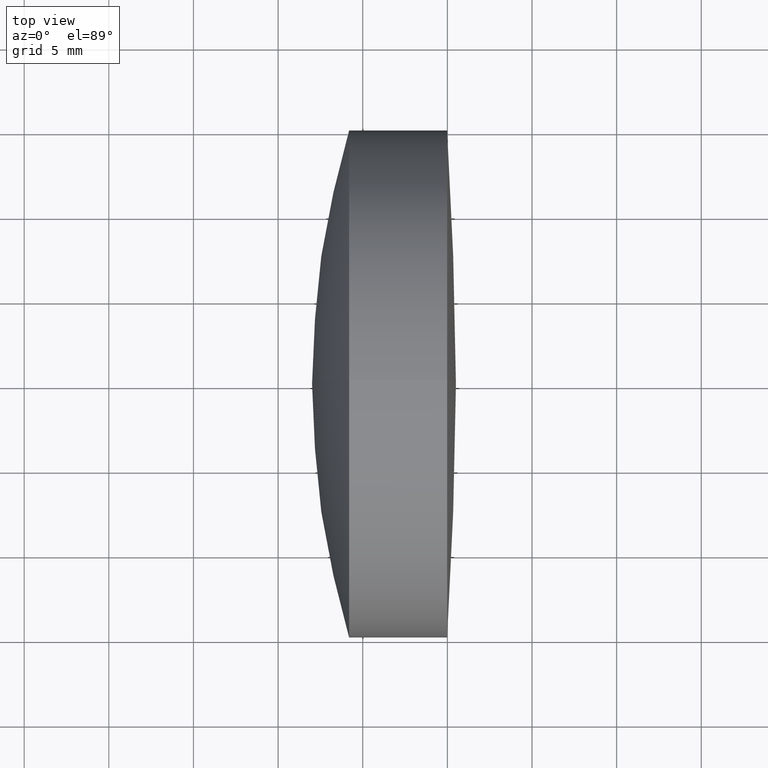
[diagram: clean part render]
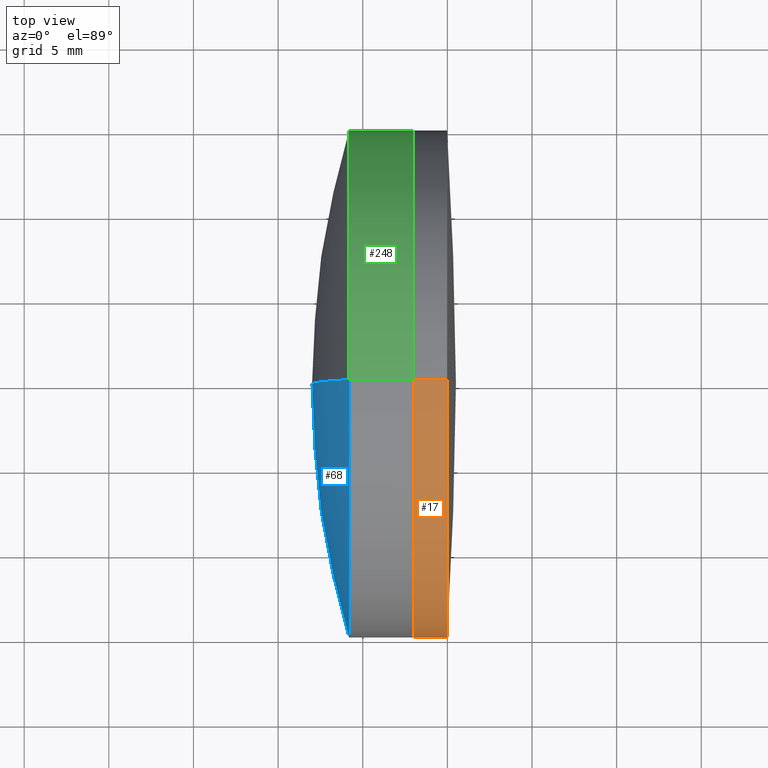
[diagram: same view with three faces highlighted in distinct colors, each labeled with its STEP entity id]
A machine part, top view with three faces highlighted in distinct colors.
Their STEP definitions:

[orange] entity #17 — the highlighted cylindrical surface (partial cylindrical patch) has radius 15 mm, axis along (-1, -0, -0).
#2 = AXIS2_PLACEMENT_3D ( 'NONE', #231, #78, #183 ) ;
#14 = FACE_OUTER_BOUND ( 'NONE', #337, .T. ) ;
#17 = ADVANCED_FACE ( 'NONE', ( #14 ), #297, .T. ) ;
#39 = VERTEX_POINT ( 'NONE', #101 ) ;
#51 = CARTESIAN_POINT ( 'NONE',  ( 534.9862274353326900, 0.0000000000000000000, 14.99999999999961500 ) ) ;
#78 = DIRECTION ( 'NONE',  ( -1.000000000000000000, -0.0000000000000000000, -0.0000000000000000000 ) ) ;
#82 = VERTEX_POINT ( 'NONE', #284 ) ;
#92 = EDGE_CURVE ( 'NONE', #246, #260, #144, .T. ) ;
#95 = ORIENTED_EDGE ( 'NONE', *, *, #252, .F. ) ;
#101 = CARTESIAN_POINT ( 'NONE',  ( 532.9862274353328100, 0.0000000000000000000, 14.99999999999968700 ) ) ;
#111 = DIRECTION ( 'NONE',  ( 0.0000000000000000000, 0.0000000000000000000, 1.000000000000000000 ) ) ;
#112 = EDGE_CURVE ( 'NONE', #82, #39, #334, .T. ) ;
#113 = DIRECTION ( 'NONE',  ( -1.000000000000000000, -0.0000000000000000000, -0.0000000000000000000 ) ) ;
#115 = CARTESIAN_POINT ( 'NONE',  ( -0.5519199926577972300, 0.0000000000000000000, 14.99999999999967700 ) ) ;
#132 = AXIS2_PLACEMENT_3D ( 'NONE', #133, #312, #253 ) ;
#133 = CARTESIAN_POINT ( 'NONE',  ( 534.9862274353326900, 0.0000000000000000000, 0.0000000000000000000 ) ) ;
#144 = CIRCLE ( 'NONE', #132, 14.99999999999961500 ) ;
#152 = AXIS2_PLACEMENT_3D ( 'NONE', #160, #280, #111 ) ;
#160 = CARTESIAN_POINT ( 'NONE',  ( 532.9862274353328100, 0.0000000000000000000, 0.0000000000000000000 ) ) ;
#182 = CARTESIAN_POINT ( 'NONE',  ( -0.5519199926577972300, 1.836970198720990100E-015, -14.99999999999967700 ) ) ;
#183 = DIRECTION ( 'NONE',  ( 0.0000000000000000000, 0.0000000000000000000, 1.000000000000000000 ) ) ;
#186 = VECTOR ( 'NONE', #218, 1000.000000000000000 ) ;
#206 = ORIENTED_EDGE ( 'NONE', *, *, #112, .F. ) ;
#212 = VECTOR ( 'NONE', #113, 1000.000000000000000 ) ;
#218 = DIRECTION ( 'NONE',  ( -1.000000000000000000, -0.0000000000000000000, -0.0000000000000000000 ) ) ;
#231 = CARTESIAN_POINT ( 'NONE',  ( -0.5519199926577972300, 0.0000000000000000000, 0.0000000000000000000 ) ) ;
#246 = VERTEX_POINT ( 'NONE', #336 ) ;
#252 = EDGE_CURVE ( 'NONE', #246, #82, #293, .T. ) ;
#253 = DIRECTION ( 'NONE',  ( 0.0000000000000000000, 0.0000000000000000000, 1.000000000000000000 ) ) ;
#260 = VERTEX_POINT ( 'NONE', #51 ) ;
#270 = ORIENTED_EDGE ( 'NONE', *, *, #92, .T. ) ;
#280 = DIRECTION ( 'NONE',  ( -1.000000000000000000, -0.0000000000000000000, -0.0000000000000000000 ) ) ;
#284 = CARTESIAN_POINT ( 'NONE',  ( 532.9862274353328100, 1.836970198720991700E-015, -14.99999999999968700 ) ) ;
#292 = EDGE_CURVE ( 'NONE', #260, #39, #340, .T. ) ;
#293 = LINE ( 'NONE', #182, #212 ) ;
#297 = CYLINDRICAL_SURFACE ( 'NONE', #2, 14.99999999999967700 ) ;
#312 = DIRECTION ( 'NONE',  ( -1.000000000000000000, -0.0000000000000000000, -0.0000000000000000000 ) ) ;
#334 = CIRCLE ( 'NONE', #152, 14.99999999999973900 ) ;
#336 = CARTESIAN_POINT ( 'NONE',  ( 534.9862274353326900, 1.836970198720986600E-015, -14.99999999999961500 ) ) ;
#337 = EDGE_LOOP ( 'NONE', ( #95, #270, #342, #206 ) ) ;
#340 = LINE ( 'NONE', #115, #186 ) ;
#342 = ORIENTED_EDGE ( 'NONE', *, *, #292, .T. ) ;

[blue] entity #68 — the highlighted spherical surface has radius 52.5 mm.
#28 = DIRECTION ( 'NONE',  ( 0.0000000000000000000, 1.000000000000000000, 0.0000000000000000000 ) ) ;
#43 = AXIS2_PLACEMENT_3D ( 'NONE', #91, #86, #76 ) ;
#48 = DIRECTION ( 'NONE',  ( 0.0000000000000000000, -1.000000000000000000, 0.0000000000000000000 ) ) ;
#68 = ADVANCED_FACE ( 'NONE', ( #303 ), #308, .T. ) ;
#69 = CARTESIAN_POINT ( 'NONE',  ( 527.0069652250824700, 0.0000000000000000000, -4.754858325981071400E-013 ) ) ;
#72 = VERTEX_POINT ( 'NONE', #69 ) ;
#73 = CARTESIAN_POINT ( 'NONE',  ( 579.5069652250824700, 0.0000000000000000000, -4.787005304458688400E-013 ) ) ;
#74 = DIRECTION ( 'NONE',  ( 0.0000000000000000000, 0.0000000000000000000, -1.000000000000000000 ) ) ;
#76 = DIRECTION ( 'NONE',  ( 0.0000000000000000000, 0.0000000000000000000, 1.000000000000000000 ) ) ;
#86 = DIRECTION ( 'NONE',  ( -1.000000000000000000, -0.0000000000000000000, -0.0000000000000000000 ) ) ;
#91 = CARTESIAN_POINT ( 'NONE',  ( 529.1954357313371700, 0.0000000000000000000, 0.0000000000000000000 ) ) ;
#106 = ORIENTED_EDGE ( 'NONE', *, *, #247, .T. ) ;
#109 = AXIS2_PLACEMENT_3D ( 'NONE', #73, #28, #255 ) ;
#146 = CIRCLE ( 'NONE', #347, 52.50000000000002100 ) ;
#147 = EDGE_LOOP ( 'NONE', ( #305, #106, #179 ) ) ;
#163 = CARTESIAN_POINT ( 'NONE',  ( 579.5069652250824700, 0.0000000000000000000, -4.787005304458688400E-013 ) ) ;
#164 = DIRECTION ( 'NONE',  ( 0.0000000000000000000, -1.224646799147353200E-016, 1.000000000000000000 ) ) ;
#179 = ORIENTED_EDGE ( 'NONE', *, *, #233, .T. ) ;
#190 = DIRECTION ( 'NONE',  ( -0.0000000000000000000, 1.000000000000000000, 1.224646799147353200E-016 ) ) ;
#210 = VERTEX_POINT ( 'NONE', #285 ) ;
#211 = CARTESIAN_POINT ( 'NONE',  ( 579.5069652250824700, 0.0000000000000000000, -4.787005304458688400E-013 ) ) ;
#215 = EDGE_CURVE ( 'NONE', #210, #72, #307, .T. ) ;
#233 = EDGE_CURVE ( 'NONE', #274, #72, #146, .T. ) ;
#247 = EDGE_CURVE ( 'NONE', #210, #274, #281, .T. ) ;
#255 = DIRECTION ( 'NONE',  ( 0.0000000000000000000, 0.0000000000000000000, 1.000000000000000000 ) ) ;
#274 = VERTEX_POINT ( 'NONE', #299 ) ;
#281 = CIRCLE ( 'NONE', #43, 14.99999999999961500 ) ;
#285 = CARTESIAN_POINT ( 'NONE',  ( 529.1954357313371700, 1.836970198720976300E-015, -15.00000000000004400 ) ) ;
#299 = CARTESIAN_POINT ( 'NONE',  ( 529.1954357313371700, 0.0000000000000000000, 14.99999999999956700 ) ) ;
#303 = FACE_OUTER_BOUND ( 'NONE', #147, .T. ) ;
#305 = ORIENTED_EDGE ( 'NONE', *, *, #215, .F. ) ;
#307 = CIRCLE ( 'NONE', #310, 52.50000000000002100 ) ;
#308 = SPHERICAL_SURFACE ( 'NONE', #109, 52.50000000000002100 ) ;
#310 = AXIS2_PLACEMENT_3D ( 'NONE', #211, #190, #164 ) ;
#347 = AXIS2_PLACEMENT_3D ( 'NONE', #163, #48, #74 ) ;

[green] entity #248 — the highlighted cylindrical surface (partial cylindrical patch) has radius 15 mm, axis along (-1, -0, -0).
#10 = EDGE_LOOP ( 'NONE', ( #16, #149, #244, #250 ) ) ;
#16 = ORIENTED_EDGE ( 'NONE', *, *, #181, .T. ) ;
#21 = VECTOR ( 'NONE', #344, 1000.000000000000000 ) ;
#27 = VECTOR ( 'NONE', #326, 1000.000000000000000 ) ;
#31 = CARTESIAN_POINT ( 'NONE',  ( 532.9862274353328100, 0.0000000000000000000, 14.99999999999960200 ) ) ;
#52 = DIRECTION ( 'NONE',  ( -1.000000000000000000, -0.0000000000000000000, -0.0000000000000000000 ) ) ;
#60 = DIRECTION ( 'NONE',  ( -1.000000000000000000, -0.0000000000000000000, -0.0000000000000000000 ) ) ;
#81 = DIRECTION ( 'NONE',  ( 0.0000000000000000000, 0.0000000000000000000, 1.000000000000000000 ) ) ;
#88 = LINE ( 'NONE', #232, #21 ) ;
#94 = CIRCLE ( 'NONE', #217, 14.99999999999961500 ) ;
#98 = AXIS2_PLACEMENT_3D ( 'NONE', #175, #60, #261 ) ;
#119 = CYLINDRICAL_SURFACE ( 'NONE', #98, 14.99999999999960700 ) ;
#128 = EDGE_CURVE ( 'NONE', #139, #210, #156, .T. ) ;
#139 = VERTEX_POINT ( 'NONE', #301 ) ;
#143 = DIRECTION ( 'NONE',  ( -1.000000000000000000, -0.0000000000000000000, -0.0000000000000000000 ) ) ;
#149 = ORIENTED_EDGE ( 'NONE', *, *, #128, .T. ) ;
#156 = LINE ( 'NONE', #298, #27 ) ;
#167 = EDGE_CURVE ( 'NONE', #274, #210, #94, .T. ) ;
#171 = CARTESIAN_POINT ( 'NONE',  ( 529.1954357313371700, 0.0000000000000000000, 0.0000000000000000000 ) ) ;
#175 = CARTESIAN_POINT ( 'NONE',  ( 124.5233095260452400, 0.0000000000000000000, 0.0000000000000000000 ) ) ;
#181 = EDGE_CURVE ( 'NONE', #235, #139, #282, .T. ) ;
#195 = FACE_OUTER_BOUND ( 'NONE', #10, .T. ) ;
#198 = EDGE_CURVE ( 'NONE', #235, #274, #88, .T. ) ;
#210 = VERTEX_POINT ( 'NONE', #285 ) ;
#217 = AXIS2_PLACEMENT_3D ( 'NONE', #171, #143, #265 ) ;
#232 = CARTESIAN_POINT ( 'NONE',  ( 124.5233095260452400, 0.0000000000000000000, 14.99999999999960700 ) ) ;
#235 = VERTEX_POINT ( 'NONE', #31 ) ;
#244 = ORIENTED_EDGE ( 'NONE', *, *, #167, .F. ) ;
#248 = ADVANCED_FACE ( 'NONE', ( #195 ), #119, .T. ) ;
#249 = AXIS2_PLACEMENT_3D ( 'NONE', #291, #52, #81 ) ;
#250 = ORIENTED_EDGE ( 'NONE', *, *, #198, .F. ) ;
#261 = DIRECTION ( 'NONE',  ( 0.0000000000000000000, 0.0000000000000000000, 1.000000000000000000 ) ) ;
#265 = DIRECTION ( 'NONE',  ( 0.0000000000000000000, 0.0000000000000000000, 1.000000000000000000 ) ) ;
#274 = VERTEX_POINT ( 'NONE', #299 ) ;
#282 = CIRCLE ( 'NONE', #249, 14.99999999999960200 ) ;
#285 = CARTESIAN_POINT ( 'NONE',  ( 529.1954357313371700, 1.836970198720976300E-015, -15.00000000000004400 ) ) ;
#291 = CARTESIAN_POINT ( 'NONE',  ( 532.9862274353328100, 0.0000000000000000000, 0.0000000000000000000 ) ) ;
#298 = CARTESIAN_POINT ( 'NONE',  ( 124.5233095260452400, 1.836970198720981900E-015, -14.99999999999960700 ) ) ;
#299 = CARTESIAN_POINT ( 'NONE',  ( 529.1954357313371700, 0.0000000000000000000, 14.99999999999956700 ) ) ;
#301 = CARTESIAN_POINT ( 'NONE',  ( 532.9862274353328100, 1.836970198720981500E-015, -14.99999999999960200 ) ) ;
#326 = DIRECTION ( 'NONE',  ( -1.000000000000000000, -0.0000000000000000000, -0.0000000000000000000 ) ) ;
#344 = DIRECTION ( 'NONE',  ( -1.000000000000000000, -0.0000000000000000000, -0.0000000000000000000 ) ) ;